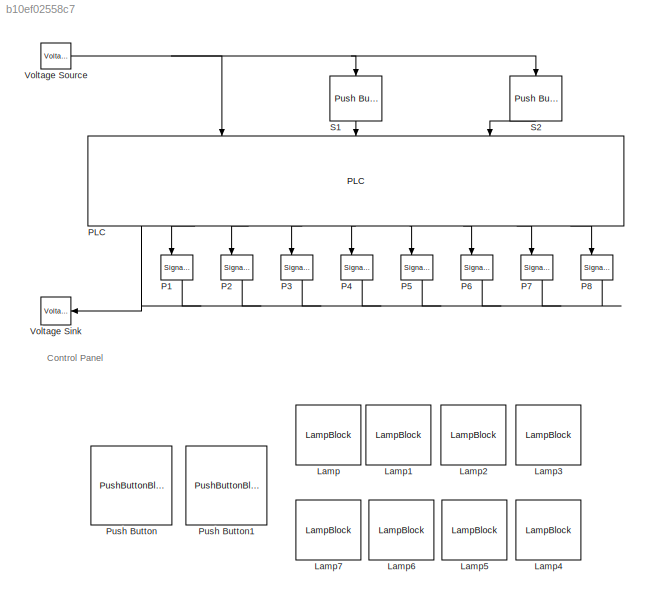
MODEL slx_b10ef02558c7
KIND model
CONFIG AbsTol = auto
CONFIG EnableMultiTasking = off
CONFIG FixedStep = 0.05
CONFIG MaxStep = auto
CONFIG MinStep = auto
CONFIG RelTol = 1e-3
CONFIG SampleTimeConstraint = Unconstrained
CONFIG Solver = VariableStepAuto
CONFIG SolverName = VariableStepAuto
CONFIG StartTime = 0.0
CONFIG StopTime = inf
BLOCK [LampBlock] Lamp
  AttributesFormatString = P1
  LabelPosition = Hide
  Tag = P1
BLOCK [LampBlock] Lamp1
  AttributesFormatString = P2
  LabelPosition = Hide
BLOCK [LampBlock] Lamp2
  AttributesFormatString = P3
  LabelPosition = Hide
BLOCK [LampBlock] Lamp3
  AttributesFormatString = P4
  LabelPosition = Hide
BLOCK [LampBlock] Lamp4
  AttributesFormatString = P8
  LabelPosition = Hide
BLOCK [LampBlock] Lamp5
  AttributesFormatString = P7
  LabelPosition = Hide
BLOCK [LampBlock] Lamp6
  AttributesFormatString = P6
  LabelPosition = Hide
BLOCK [LampBlock] Lamp7
  AttributesFormatString = P5
  LabelPosition = Hide
BLOCK [Reference] P1  REF=library_plc2simulink/Signal Lamp  (lib defined in slx_51909f2a5fe6, slx_fcf39afcd9e3)
  NameLocation = left
  Ports = [2]
  SourceBlock = library_plc2simulink/Signal Lamp
  SourceProductName = PLC2Simulink
BLOCK [Reference] P2  REF=library_plc2simulink/Signal Lamp  (lib defined in slx_51909f2a5fe6, slx_fcf39afcd9e3)
  NameLocation = left
  Ports = [2]
  SourceBlock = library_plc2simulink/Signal Lamp
  SourceProductName = PLC2Simulink
BLOCK [Reference] P3  REF=library_plc2simulink/Signal Lamp  (lib defined in slx_51909f2a5fe6, slx_fcf39afcd9e3)
  NameLocation = left
  Ports = [2]
  SourceBlock = library_plc2simulink/Signal Lamp
  SourceProductName = PLC2Simulink
BLOCK [Reference] P4  REF=library_plc2simulink/Signal Lamp  (lib defined in slx_51909f2a5fe6, slx_fcf39afcd9e3)
  NameLocation = left
  Ports = [2]
  SourceBlock = library_plc2simulink/Signal Lamp
  SourceProductName = PLC2Simulink
BLOCK [Reference] P5  REF=library_plc2simulink/Signal Lamp  (lib defined in slx_51909f2a5fe6, slx_fcf39afcd9e3)
  NameLocation = left
  Ports = [2]
  SourceBlock = library_plc2simulink/Signal Lamp
  SourceProductName = PLC2Simulink
BLOCK [Reference] P6  REF=library_plc2simulink/Signal Lamp  (lib defined in slx_51909f2a5fe6, slx_fcf39afcd9e3)
  NameLocation = left
  Ports = [2]
  SourceBlock = library_plc2simulink/Signal Lamp
  SourceProductName = PLC2Simulink
BLOCK [Reference] P7  REF=library_plc2simulink/Signal Lamp  (lib defined in slx_51909f2a5fe6, slx_fcf39afcd9e3)
  NameLocation = left
  Ports = [2]
  SourceBlock = library_plc2simulink/Signal Lamp
  SourceProductName = PLC2Simulink
BLOCK [Reference] P8  REF=library_plc2simulink/Signal Lamp  (lib defined in slx_51909f2a5fe6, slx_fcf39afcd9e3)
  NameLocation = left
  Ports = [2]
  SourceBlock = library_plc2simulink/Signal Lamp
  SourceProductName = PLC2Simulink
BLOCK [Reference] PLC  REF=library_plc2simulink/PLC  (lib defined in slx_51909f2a5fe6, slx_fcf39afcd9e3)
  NameLocation = left
  Ports = [3, 9]
  SourceBlock = library_plc2simulink/PLC
  SourceProductName = PLC2Simulink
BLOCK [PushButtonBlock] Push Button
  ButtonText = S1
BLOCK [PushButtonBlock] Push Button1
  AttributesFormatString = B2
  ButtonText = S2
BLOCK [Reference] S1  REF=library_plc2simulink/Push Button  (lib defined in slx_51909f2a5fe6, slx_fcf39afcd9e3)
  NameLocation = left
  Ports = [1, 1]
  SourceBlock = library_plc2simulink/Push Button
  SourceProductName = PLC2Simulink
BLOCK [Reference] S2  REF=library_plc2simulink/Push Button  (lib defined in slx_51909f2a5fe6, slx_fcf39afcd9e3)
  NameLocation = left
  Ports = [1, 1]
  SourceBlock = library_plc2simulink/Push Button
  SourceProductName = PLC2Simulink
BLOCK [Reference] Voltage Sink  REF=library_plc2simulink/Voltage Sink  (lib defined in slx_51909f2a5fe6, slx_fcf39afcd9e3)
  Ports = [1]
  SourceBlock = library_plc2simulink/Voltage Sink
  SourceProductName = PLC2Simulink
BLOCK [Reference] Voltage Source  REF=library_plc2simulink/Voltage Source  (lib defined in slx_51909f2a5fe6, slx_fcf39afcd9e3)
  Ports = [0, 1]
  SourceBlock = library_plc2simulink/Voltage Source
  SourceProductName = PLC2Simulink
ANNOTATION (root): Control Panel
NET PLC:1 -> P1:2, P2:2, P3:2, P4:2, P5:2, P6:2, P7:2, P8:2, Voltage Sink:1
LINE PLC:2 -> P1:1
LINE PLC:3 -> P2:1
LINE PLC:4 -> P3:1
LINE PLC:5 -> P4:1
LINE PLC:6 -> P5:1
LINE PLC:7 -> P6:1
LINE PLC:8 -> P7:1
LINE PLC:9 -> P8:1
LINE S1:1 -> PLC:2
LINE S2:1 -> PLC:3
NET Voltage Source:1 -> PLC:1, S1:1, S2:1
note: NET lines group one-source signal fan-out (src -> all destinations, sorted); 1:1 wires keep LINE
